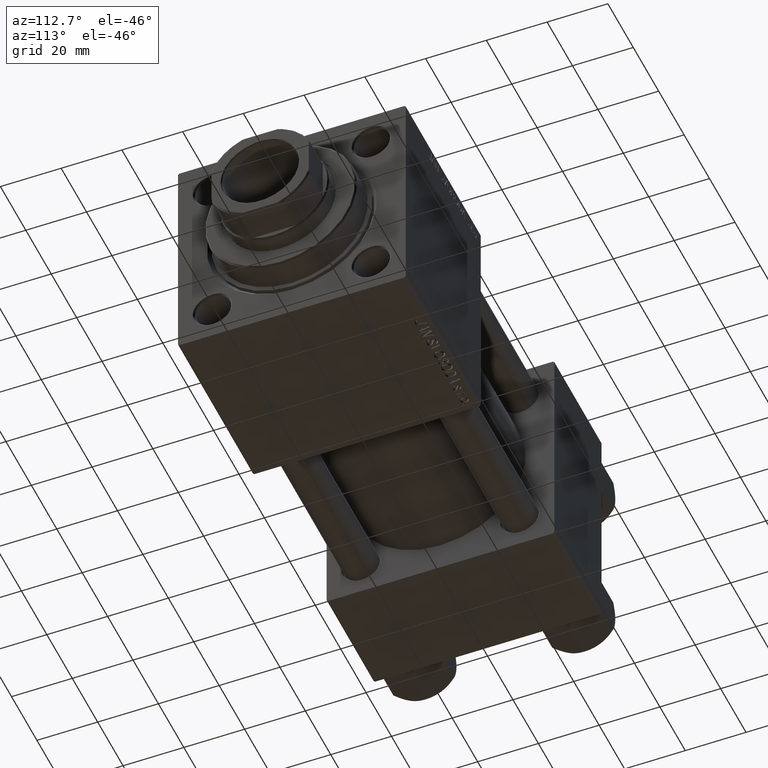
[diagram: clean part render]
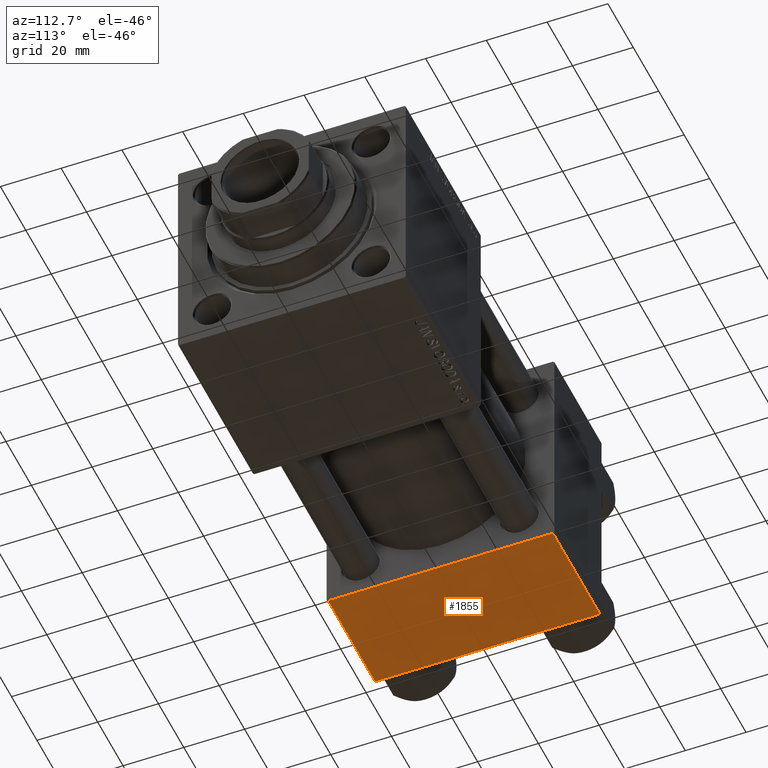
[diagram: same view with one face highlighted and labeled with its STEP entity id]
A machine part, auxiliary view. The second image highlights one B-rep face of the part: STEP entity #1855.
In plain terms, the highlighted planar face has unit normal (0, 0, -1).
Its self-contained STEP definition (entity closure, byte-faithful):
#954 = DIRECTION ( 'NONE',  ( 1.000000000000000000, 0.000000000000000000, 0.000000000000000000 ) ) ;
#1855 = ADVANCED_FACE ( 'NONE', ( #16686 ), #32158, .T. ) ;
#2954 = VERTEX_POINT ( 'NONE', #10332 ) ;
#4635 = ORIENTED_EDGE ( 'NONE', *, *, #35919, .F. ) ;
#5367 = DIRECTION ( 'NONE',  ( 0.000000000000000000, -1.000000000000000000, -9.251858538542972814E-17 ) ) ;
#6262 = ORIENTED_EDGE ( 'NONE', *, *, #12027, .T. ) ;
#9093 = DIRECTION ( 'NONE',  ( 0.000000000000000000, 9.251858538542972814E-17, -1.000000000000000000 ) ) ;
#9692 = LINE ( 'NONE', #45230, #32373 ) ;
#10332 = CARTESIAN_POINT ( 'NONE',  ( 37.00000000000000000, -37.00000000000002132, -37.50000000000000711 ) ) ;
#10511 = ORIENTED_EDGE ( 'NONE', *, *, #15542, .T. ) ;
#12027 = EDGE_CURVE ( 'NONE', #2954, #19277, #45269, .T. ) ;
#12096 = LINE ( 'NONE', #50219, #14617 ) ;
#13667 = VECTOR ( 'NONE', #40700, 1000.000000000000000 ) ;
#14524 = VERTEX_POINT ( 'NONE', #19473 ) ;
#14617 = VECTOR ( 'NONE', #954, 1000.000000000000000 ) ;
#15542 = EDGE_CURVE ( 'NONE', #37068, #2954, #40131, .T. ) ;
#16686 = FACE_OUTER_BOUND ( 'NONE', #46082, .T. ) ;
#19277 = VERTEX_POINT ( 'NONE', #19517 ) ;
#19473 = CARTESIAN_POINT ( 'NONE',  ( 0.000000000000000000, 36.99999999999997868, -37.50000000000000000 ) ) ;
#19517 = CARTESIAN_POINT ( 'NONE',  ( 0.000000000000000000, -37.00000000000002132, -37.50000000000000711 ) ) ;
#22247 = AXIS2_PLACEMENT_3D ( 'NONE', #39301, #9093, #24556 ) ;
#22933 = VECTOR ( 'NONE', #5367, 1000.000000000000000 ) ;
#24556 = DIRECTION ( 'NONE',  ( 0.000000000000000000, 1.000000000000000000, 9.251858538542972814E-17 ) ) ;
#25948 = CARTESIAN_POINT ( 'NONE',  ( 0.000000000000000000, -37.00000000000002132, -37.50000000000000711 ) ) ;
#32158 = PLANE ( 'NONE',  #22247 ) ;
#32373 = VECTOR ( 'NONE', #40918, 1000.000000000000000 ) ;
#35919 = EDGE_CURVE ( 'NONE', #14524, #19277, #9692, .T. ) ;
#37068 = VERTEX_POINT ( 'NONE', #49167 ) ;
#39301 = CARTESIAN_POINT ( 'NONE',  ( 37.00000000000000000, 37.49999999999999289, -37.50000000000000000 ) ) ;
#40131 = LINE ( 'NONE', #47509, #22933 ) ;
#40645 = EDGE_CURVE ( 'NONE', #14524, #37068, #12096, .T. ) ;
#40700 = DIRECTION ( 'NONE',  ( -1.000000000000000000, 0.000000000000000000, 0.000000000000000000 ) ) ;
#40918 = DIRECTION ( 'NONE',  ( 0.000000000000000000, -1.000000000000000000, -9.251858538542972814E-17 ) ) ;
#44994 = ORIENTED_EDGE ( 'NONE', *, *, #40645, .T. ) ;
#45230 = CARTESIAN_POINT ( 'NONE',  ( 0.000000000000000000, 37.49999999999999289, -37.50000000000000000 ) ) ;
#45269 = LINE ( 'NONE', #25948, #13667 ) ;
#46082 = EDGE_LOOP ( 'NONE', ( #4635, #44994, #10511, #6262 ) ) ;
#47509 = CARTESIAN_POINT ( 'NONE',  ( 37.00000000000000000, 37.49999999999999289, -37.50000000000000000 ) ) ;
#49167 = CARTESIAN_POINT ( 'NONE',  ( 37.00000000000000000, 36.99999999999997868, -37.50000000000000000 ) ) ;
#50219 = CARTESIAN_POINT ( 'NONE',  ( 37.00000000000000000, 36.99999999999997868, -37.50000000000000000 ) ) ;